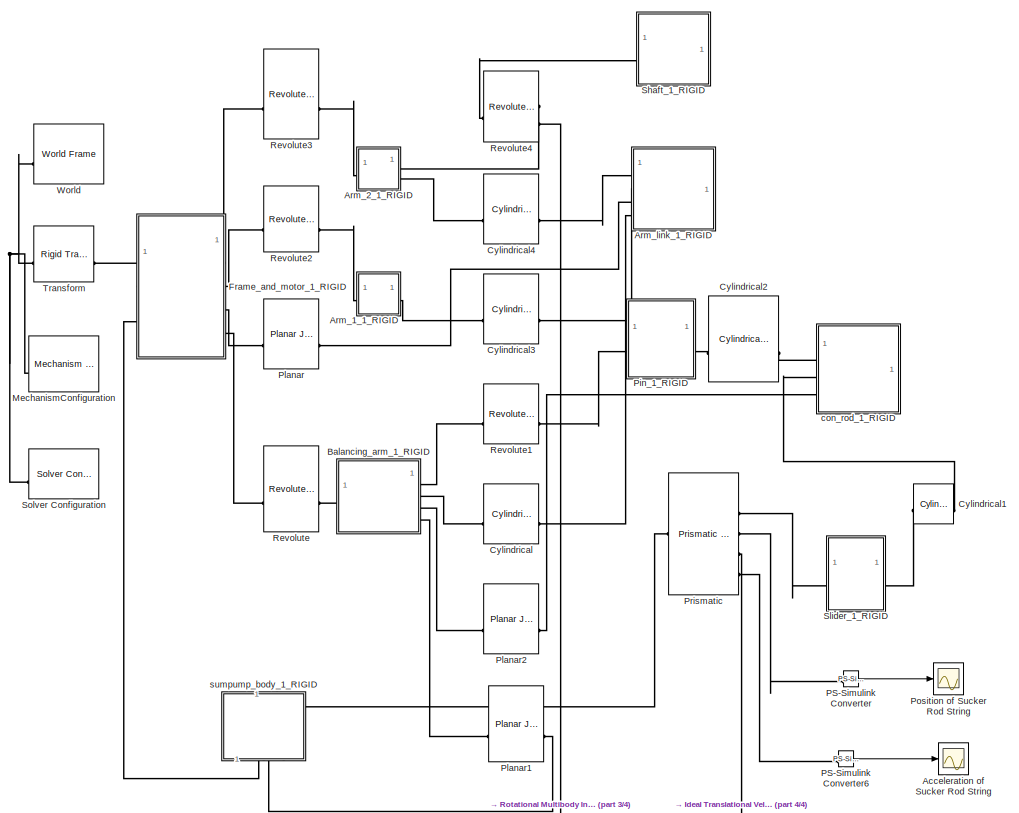
[diagram: root canvas - part 1/4, top center region]
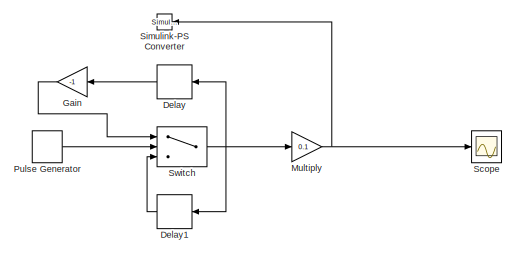
[diagram: root canvas - part 2/4, top right region]
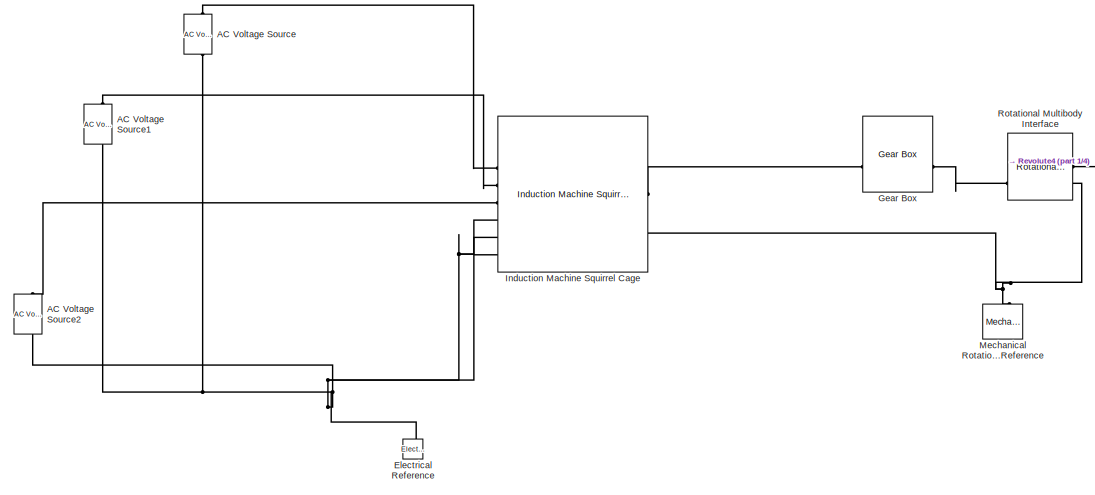
[diagram: root canvas - part 3/4, middle left region]
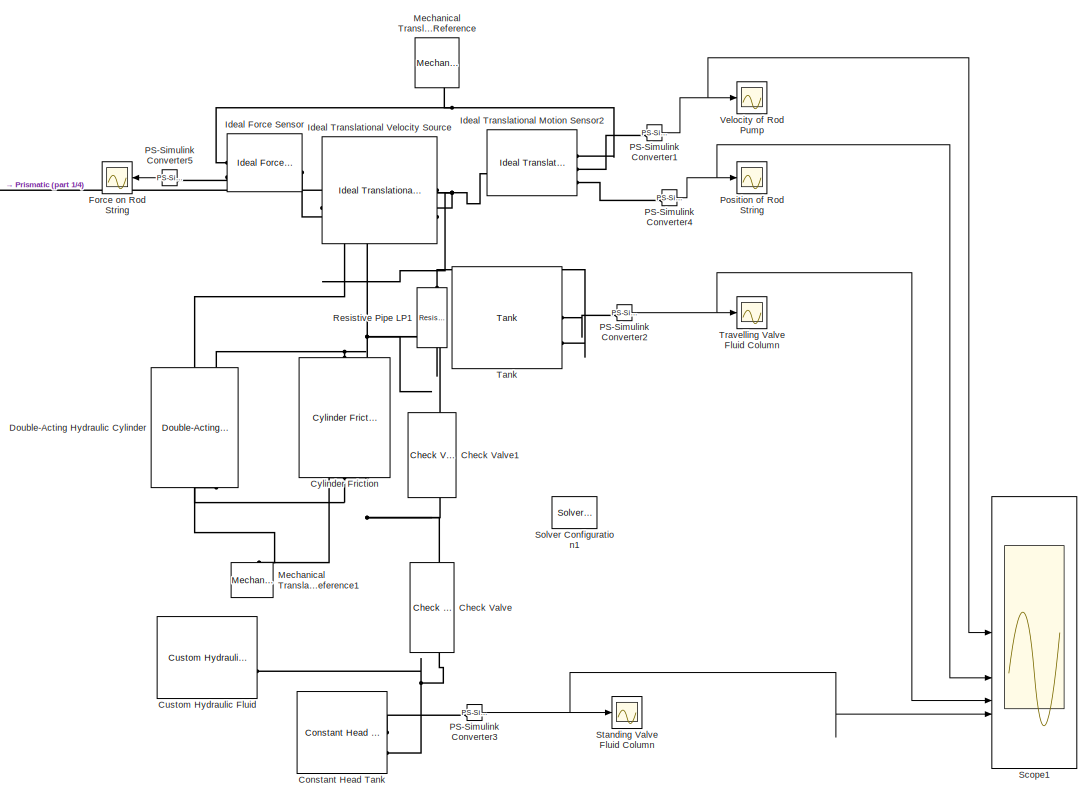
[diagram: root canvas - part 4/4, bottom right region]
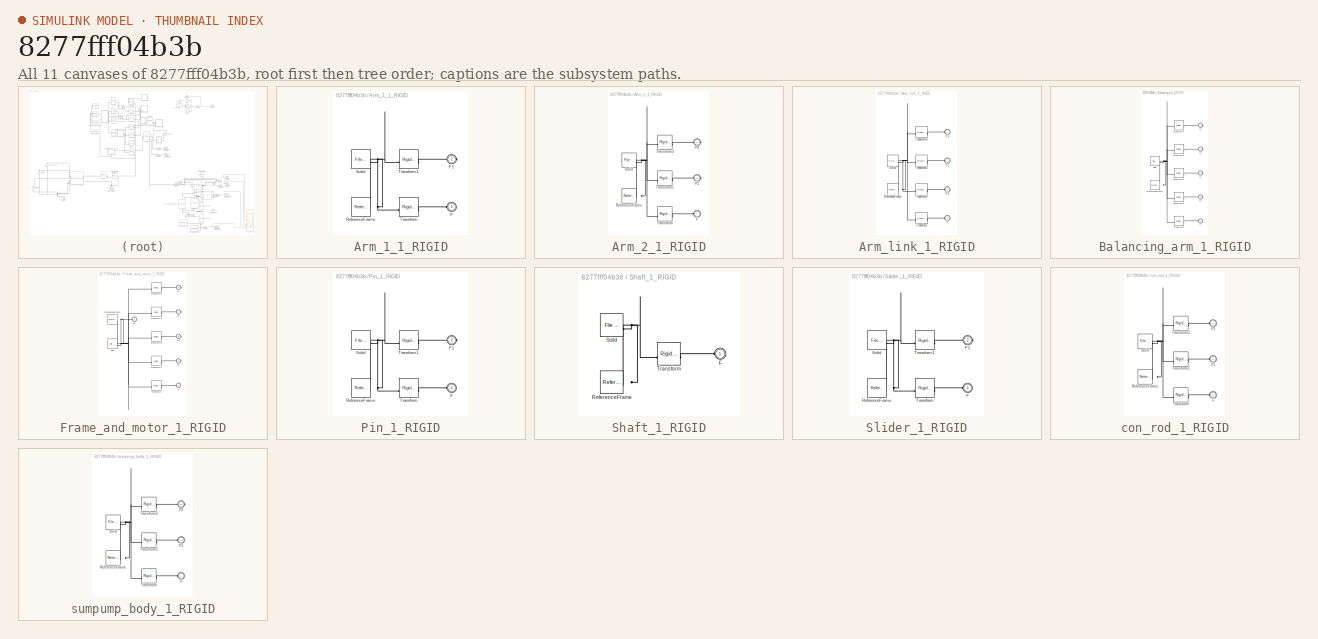
[diagram: thumbnail index - all 11 canvases of the model, root first then tree order]
MODEL slx_8277fff04b3b
KIND model
CONFIG AbsTol = auto
CONFIG EnableMultiTasking = off
CONFIG FixedStep = auto
CONFIG MaxStep = auto
CONFIG MinStep = auto
CONFIG RelTol = 1e-3
CONFIG SampleTimeConstraint = Unconstrained
CONFIG SolverName = VariableStepAuto
CONFIG StartTime = 0.0
CONFIG StopTime = 1.0
WORKSPACE source: external: MATLAB File  (data not in archive)
BLOCK [Reference] AC Voltage Source  REF=fl_lib/Electrical/Electrical Sources/AC Voltage Source
  NameLocation = right
  SourceBlock = fl_lib/Electrical/Electrical Sources/AC Voltage Source
  SourceType = AC Voltage Source
BLOCK [Reference] AC Voltage Source1  REF=fl_lib/Electrical/Electrical Sources/AC Voltage Source
  NameLocation = right
  SourceBlock = fl_lib/Electrical/Electrical Sources/AC Voltage Source
  SourceType = AC Voltage Source
BLOCK [Reference] AC Voltage Source2  REF=fl_lib/Electrical/Electrical Sources/AC Voltage Source
  NameLocation = right
  SourceBlock = fl_lib/Electrical/Electrical Sources/AC Voltage Source
  SourceType = AC Voltage Source
BLOCK [Scope] Acceleration of Sucker Rod String
  Floating = off
  NameLocation = top
  NumInputPorts = 1
  ScopeSpecificationString = Simulink.scopes.TimeScopeBlockCfg('CurrentConfiguration', extmgr.ConfigurationSet(extmgr.Configuration('Core','General UI',true),extmgr.Configuration('Core','Source UI',true),extmgr.Configuration('Sources','WiredSimulink',true,'DataLoggingVariableName','ScopeData1'),extmgr.Configuration('Visuals','Time Domain',true,'SerializedDisplays',{struct('MinYLimReal','-6800412.01742','MaxYLimReal','8439459....<+1920ch>
BLOCK [SubSystem] Arm_1_1_RIGID
BLOCK [PMIOPort] Arm_1_1_RIGID/F
  Side = Left
BLOCK [PMIOPort] Arm_1_1_RIGID/F1
  Port = 2
  Side = Right
BLOCK [Reference] Arm_1_1_RIGID/ReferenceFrame  REF=sm_lib/Frames and
Transforms/Reference
Frame
  SourceBlock = sm_lib/Frames and\nTransforms/Reference\nFrame
  SourceType = Reference\nFrame
BLOCK [Reference] Arm_1_1_RIGID/Solid  REF=sm_lib/Body Elements/File Solid
  SourceBlock = sm_lib/Body Elements/File Solid
  SourceType = File Solid
BLOCK [Reference] Arm_1_1_RIGID/Transform  REF=sm_lib/Frames and
Transforms/Rigid
Transform
  SourceBlock = sm_lib/Frames and\nTransforms/Rigid\nTransform
  SourceType = Rigid\nTransform
BLOCK [Reference] Arm_1_1_RIGID/Transform1  REF=sm_lib/Frames and
Transforms/Rigid
Transform
  SourceBlock = sm_lib/Frames and\nTransforms/Rigid\nTransform
  SourceType = Rigid\nTransform
BLOCK [SubSystem] Arm_2_1_RIGID
BLOCK [PMIOPort] Arm_2_1_RIGID/F
  Side = Left
BLOCK [PMIOPort] Arm_2_1_RIGID/F1
  Port = 3
  Side = Right
BLOCK [PMIOPort] Arm_2_1_RIGID/F2
  Port = 2
  Side = Right
BLOCK [Reference] Arm_2_1_RIGID/ReferenceFrame  REF=sm_lib/Frames and
Transforms/Reference
Frame
  SourceBlock = sm_lib/Frames and\nTransforms/Reference\nFrame
  SourceType = Reference\nFrame
BLOCK [Reference] Arm_2_1_RIGID/Solid  REF=sm_lib/Body Elements/File Solid
  SourceBlock = sm_lib/Body Elements/File Solid
  SourceType = File Solid
BLOCK [Reference] Arm_2_1_RIGID/Transform  REF=sm_lib/Frames and
Transforms/Rigid
Transform
  SourceBlock = sm_lib/Frames and\nTransforms/Rigid\nTransform
  SourceType = Rigid\nTransform
BLOCK [Reference] Arm_2_1_RIGID/Transform1  REF=sm_lib/Frames and
Transforms/Rigid
Transform
  SourceBlock = sm_lib/Frames and\nTransforms/Rigid\nTransform
  SourceType = Rigid\nTransform
BLOCK [Reference] Arm_2_1_RIGID/Transform2  REF=sm_lib/Frames and
Transforms/Rigid
Transform
  SourceBlock = sm_lib/Frames and\nTransforms/Rigid\nTransform
  SourceType = Rigid\nTransform
BLOCK [SubSystem] Arm_link_1_RIGID
BLOCK [PMIOPort] Arm_link_1_RIGID/F
  Port = 3
  Side = Left
BLOCK [PMIOPort] Arm_link_1_RIGID/F1
  Port = 4
  Side = Left
BLOCK [PMIOPort] Arm_link_1_RIGID/F2
  Port = 2
  Side = Left
BLOCK [PMIOPort] Arm_link_1_RIGID/F3
  Side = Left
BLOCK [Reference] Arm_link_1_RIGID/ReferenceFrame  REF=sm_lib/Frames and
Transforms/Reference
Frame
  SourceBlock = sm_lib/Frames and\nTransforms/Reference\nFrame
  SourceType = Reference\nFrame
BLOCK [Reference] Arm_link_1_RIGID/Solid  REF=sm_lib/Body Elements/File Solid
  SourceBlock = sm_lib/Body Elements/File Solid
  SourceType = File Solid
BLOCK [Reference] Arm_link_1_RIGID/Transform  REF=sm_lib/Frames and
Transforms/Rigid
Transform
  SourceBlock = sm_lib/Frames and\nTransforms/Rigid\nTransform
  SourceType = Rigid\nTransform
BLOCK [Reference] Arm_link_1_RIGID/Transform1  REF=sm_lib/Frames and
Transforms/Rigid
Transform
  SourceBlock = sm_lib/Frames and\nTransforms/Rigid\nTransform
  SourceType = Rigid\nTransform
BLOCK [Reference] Arm_link_1_RIGID/Transform2  REF=sm_lib/Frames and
Transforms/Rigid
Transform
  SourceBlock = sm_lib/Frames and\nTransforms/Rigid\nTransform
  SourceType = Rigid\nTransform
BLOCK [Reference] Arm_link_1_RIGID/Transform3  REF=sm_lib/Frames and
Transforms/Rigid
Transform
  SourceBlock = sm_lib/Frames and\nTransforms/Rigid\nTransform
  SourceType = Rigid\nTransform
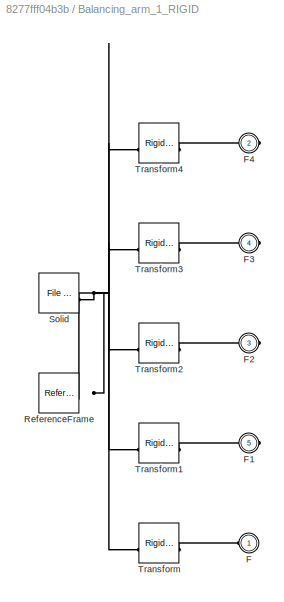
BLOCK [SubSystem] Balancing_arm_1_RIGID
BLOCK [PMIOPort] Balancing_arm_1_RIGID/F
  Side = Left
BLOCK [PMIOPort] Balancing_arm_1_RIGID/F1
  Port = 5
  Side = Right
BLOCK [PMIOPort] Balancing_arm_1_RIGID/F2
  Port = 3
  Side = Right
BLOCK [PMIOPort] Balancing_arm_1_RIGID/F3
  Port = 4
  Side = Right
BLOCK [PMIOPort] Balancing_arm_1_RIGID/F4
  Port = 2
  Side = Right
BLOCK [Reference] Balancing_arm_1_RIGID/ReferenceFrame  REF=sm_lib/Frames and
Transforms/Reference
Frame
  SourceBlock = sm_lib/Frames and\nTransforms/Reference\nFrame
  SourceType = Reference\nFrame
BLOCK [Reference] Balancing_arm_1_RIGID/Solid  REF=sm_lib/Body Elements/File Solid
  SourceBlock = sm_lib/Body Elements/File Solid
  SourceType = File Solid
BLOCK [Reference] Balancing_arm_1_RIGID/Transform  REF=sm_lib/Frames and
Transforms/Rigid
Transform
  SourceBlock = sm_lib/Frames and\nTransforms/Rigid\nTransform
  SourceType = Rigid\nTransform
BLOCK [Reference] Balancing_arm_1_RIGID/Transform1  REF=sm_lib/Frames and
Transforms/Rigid
Transform
  SourceBlock = sm_lib/Frames and\nTransforms/Rigid\nTransform
  SourceType = Rigid\nTransform
BLOCK [Reference] Balancing_arm_1_RIGID/Transform2  REF=sm_lib/Frames and
Transforms/Rigid
Transform
  SourceBlock = sm_lib/Frames and\nTransforms/Rigid\nTransform
  SourceType = Rigid\nTransform
BLOCK [Reference] Balancing_arm_1_RIGID/Transform3  REF=sm_lib/Frames and
Transforms/Rigid
Transform
  SourceBlock = sm_lib/Frames and\nTransforms/Rigid\nTransform
  SourceType = Rigid\nTransform
BLOCK [Reference] Balancing_arm_1_RIGID/Transform4  REF=sm_lib/Frames and
Transforms/Rigid
Transform
  SourceBlock = sm_lib/Frames and\nTransforms/Rigid\nTransform
  SourceType = Rigid\nTransform
BLOCK [Reference] Check Valve  REF=sh_lib/Valves/Directional Valves/Check Valve
  NameLocation = right
  SourceBlock = sh_lib/Valves/Directional Valves/Check Valve
  SourceType = Check Valve
BLOCK [Reference] Check Valve1  REF=sh_lib/Valves/Directional Valves/Check Valve
  NameLocation = right
  SourceBlock = sh_lib/Valves/Directional Valves/Check Valve
  SourceType = Check Valve
BLOCK [Reference] Constant Head Tank  REF=sh_lib/Low-Pressure Blocks/Constant Head Tank
  SourceBlock = sh_lib/Low-Pressure Blocks/Constant Head Tank
  SourceType = Constant Head Tank
BLOCK [Reference] Custom Hydraulic Fluid  REF=fl_lib/Hydraulic/Hydraulic Utilities/Custom Hydraulic
Fluid
  SourceBlock = fl_lib/Hydraulic/Hydraulic Utilities/Custom Hydraulic\nFluid
  SourceType = Custom Hydraulic\nFluid
BLOCK [Reference] Cylinder Friction  REF=sh_lib/Hydraulic Cylinders/Cylinder Friction
  NameLocation = left
  SourceBlock = sh_lib/Hydraulic Cylinders/Cylinder Friction
  SourceType = Cylinder Friction
BLOCK [Reference] Cylindrical  REF=sm_lib/Joints/Cylindrical
Joint
  SourceBlock = sm_lib/Joints/Cylindrical\nJoint
  SourceType = Cylindrical\nJoint
BLOCK [Reference] Cylindrical1  REF=sm_lib/Joints/Cylindrical
Joint
  SourceBlock = sm_lib/Joints/Cylindrical\nJoint
  SourceType = Cylindrical\nJoint
BLOCK [Reference] Cylindrical2  REF=sm_lib/Joints/Cylindrical
Joint
  SourceBlock = sm_lib/Joints/Cylindrical\nJoint
  SourceType = Cylindrical\nJoint
BLOCK [Reference] Cylindrical3  REF=sm_lib/Joints/Cylindrical
Joint
  SourceBlock = sm_lib/Joints/Cylindrical\nJoint
  SourceType = Cylindrical\nJoint
BLOCK [Reference] Cylindrical4  REF=sm_lib/Joints/Cylindrical
Joint
  SourceBlock = sm_lib/Joints/Cylindrical\nJoint
  SourceType = Cylindrical\nJoint
BLOCK [Delay] Delay
  DelayLength = 1
  InputPortMap = u0
BLOCK [Delay] Delay1
  DelayLength = 1
  InputPortMap = u0
BLOCK [Reference] Double-Acting Hydraulic Cylinder  REF=sh_lib/Hydraulic Cylinders/Double-Acting
Hydraulic Cylinder
  NameLocation = left
  SourceBlock = sh_lib/Hydraulic Cylinders/Double-Acting\nHydraulic Cylinder
  SourceType = Double-Acting\nHydraulic Cylinder
BLOCK [Reference] Electrical Reference  REF=fl_lib/Electrical/Electrical Elements/Electrical Reference
  NameLocation = right
  SourceBlock = fl_lib/Electrical/Electrical Elements/Electrical Reference
  SourceType = Electrical Reference
BLOCK [Scope] Force on Rod String
  Floating = off
  NameLocation = top
  NumInputPorts = 1
  ScopeSpecificationString = Simulink.scopes.TimeScopeBlockCfg('CurrentConfiguration', extmgr.ConfigurationSet(extmgr.Configuration('Core','General UI',true),extmgr.Configuration('Core','Source UI',true),extmgr.Configuration('Sources','WiredSimulink',true,'DataLoggingVariableName','ScopeData5'),extmgr.Configuration('Visuals','Time Domain',true,'SerializedDisplays',{struct('MinYLimReal','-6138792.93317','MaxYLimReal','2112015....<+2216ch>
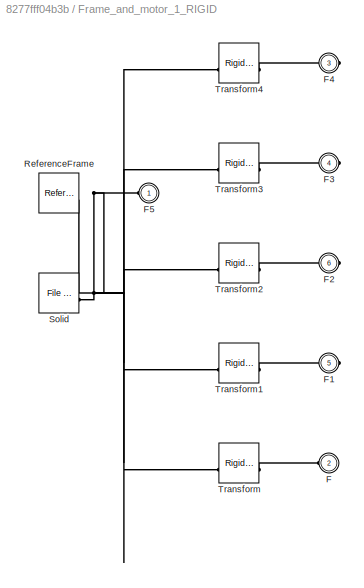
BLOCK [SubSystem] Frame_and_motor_1_RIGID
BLOCK [PMIOPort] Frame_and_motor_1_RIGID/F
  Port = 2
  Side = Left
BLOCK [PMIOPort] Frame_and_motor_1_RIGID/F1
  Port = 5
  Side = Right
BLOCK [PMIOPort] Frame_and_motor_1_RIGID/F2
  Port = 6
  Side = Right
BLOCK [PMIOPort] Frame_and_motor_1_RIGID/F3
  Port = 4
  Side = Right
BLOCK [PMIOPort] Frame_and_motor_1_RIGID/F4
  Port = 3
  Side = Right
BLOCK [PMIOPort] Frame_and_motor_1_RIGID/F5
  Side = Left
BLOCK [Reference] Frame_and_motor_1_RIGID/ReferenceFrame  REF=sm_lib/Frames and
Transforms/Reference
Frame
  SourceBlock = sm_lib/Frames and\nTransforms/Reference\nFrame
  SourceType = Reference\nFrame
BLOCK [Reference] Frame_and_motor_1_RIGID/Solid  REF=sm_lib/Body Elements/File Solid
  SourceBlock = sm_lib/Body Elements/File Solid
  SourceType = File Solid
BLOCK [Reference] Frame_and_motor_1_RIGID/Transform  REF=sm_lib/Frames and
Transforms/Rigid
Transform
  SourceBlock = sm_lib/Frames and\nTransforms/Rigid\nTransform
  SourceType = Rigid\nTransform
BLOCK [Reference] Frame_and_motor_1_RIGID/Transform1  REF=sm_lib/Frames and
Transforms/Rigid
Transform
  SourceBlock = sm_lib/Frames and\nTransforms/Rigid\nTransform
  SourceType = Rigid\nTransform
BLOCK [Reference] Frame_and_motor_1_RIGID/Transform2  REF=sm_lib/Frames and
Transforms/Rigid
Transform
  SourceBlock = sm_lib/Frames and\nTransforms/Rigid\nTransform
  SourceType = Rigid\nTransform
BLOCK [Reference] Frame_and_motor_1_RIGID/Transform3  REF=sm_lib/Frames and
Transforms/Rigid
Transform
  SourceBlock = sm_lib/Frames and\nTransforms/Rigid\nTransform
  SourceType = Rigid\nTransform
BLOCK [Reference] Frame_and_motor_1_RIGID/Transform4  REF=sm_lib/Frames and
Transforms/Rigid
Transform
  SourceBlock = sm_lib/Frames and\nTransforms/Rigid\nTransform
  SourceType = Rigid\nTransform
BLOCK [Gain] Gain
  Gain = -1
BLOCK [Reference] Gear Box  REF=fl_lib/Mechanical/Mechanisms/Gear Box
  SourceBlock = fl_lib/Mechanical/Mechanisms/Gear Box
  SourceType = Gear Box
BLOCK [Reference] Ideal Force Sensor  REF=fl_lib/Mechanical/Mechanical Sensors/Ideal Force Sensor
  NameLocation = top
  SourceBlock = fl_lib/Mechanical/Mechanical Sensors/Ideal Force Sensor
  SourceType = Ideal Force Sensor
BLOCK [Reference] Ideal Translational Motion Sensor2  REF=fl_lib/Mechanical/Mechanical Sensors/Ideal Translational
Motion Sensor
  SourceBlock = fl_lib/Mechanical/Mechanical Sensors/Ideal Translational\nMotion Sensor
  SourceType = Ideal Translational\nMotion Sensor
BLOCK [Reference] Ideal Translational Velocity Source  REF=fl_lib/Mechanical/Mechanical Sources/Ideal Translational
Velocity Source
  SourceBlock = fl_lib/Mechanical/Mechanical Sources/Ideal Translational\nVelocity Source
  SourceType = Ideal Translational\nVelocity Source
BLOCK [Reference] Induction Machine Squirrel Cage  REF=ee_lib/Electromechanical/Asynchronous/Induction Machine
Squirrel Cage
  SourceBlock = ee_lib/Electromechanical/Asynchronous/Induction Machine\nSquirrel Cage
  SourceType = Induction Machine\nSquirrel Cage
BLOCK [Reference] Mechanical Rotational Reference  REF=fl_lib/Mechanical/Rotational Elements/Mechanical
Rotational Reference
  NameLocation = right
  SourceBlock = fl_lib/Mechanical/Rotational Elements/Mechanical\nRotational Reference
  SourceType = Mechanical\nRotational Reference
BLOCK [Reference] Mechanical Translational Reference  REF=fl_lib/Mechanical/Translational
Elements/Mechanical
Translational
Reference
  NameLocation = left
  SourceBlock = fl_lib/Mechanical/Translational\nElements/Mechanical\nTranslational\nReference
  SourceType = Mechanical\nTranslational\nReference
BLOCK [Reference] Mechanical Translational Reference1  REF=fl_lib/Mechanical/Translational
Elements/Mechanical
Translational
Reference
  NameLocation = right
  SourceBlock = fl_lib/Mechanical/Translational\nElements/Mechanical\nTranslational\nReference
  SourceType = Mechanical\nTranslational\nReference
BLOCK [Reference] MechanismConfiguration  REF=sm_lib/Utilities/Mechanism
Configuration
  SourceBlock = sm_lib/Utilities/Mechanism\nConfiguration
  SourceType = Mechanism\nConfiguration
BLOCK [Gain] Multiply
  Gain = 0.1
BLOCK [Reference] PS-Simulink Converter  REF=nesl_utility/PS-Simulink
Converter
  SourceBlock = nesl_utility/PS-Simulink\nConverter
  SourceType = PS-Simulink\nConverter
BLOCK [Reference] PS-Simulink Converter1  REF=nesl_utility/PS-Simulink
Converter
  SourceBlock = nesl_utility/PS-Simulink\nConverter
  SourceType = PS-Simulink\nConverter
BLOCK [Reference] PS-Simulink Converter2  REF=nesl_utility/PS-Simulink
Converter
  SourceBlock = nesl_utility/PS-Simulink\nConverter
  SourceType = PS-Simulink\nConverter
BLOCK [Reference] PS-Simulink Converter3  REF=nesl_utility/PS-Simulink
Converter
  SourceBlock = nesl_utility/PS-Simulink\nConverter
  SourceType = PS-Simulink\nConverter
BLOCK [Reference] PS-Simulink Converter4  REF=nesl_utility/PS-Simulink
Converter
  SourceBlock = nesl_utility/PS-Simulink\nConverter
  SourceType = PS-Simulink\nConverter
BLOCK [Reference] PS-Simulink Converter5  REF=nesl_utility/PS-Simulink
Converter
  SourceBlock = nesl_utility/PS-Simulink\nConverter
  SourceType = PS-Simulink\nConverter
BLOCK [Reference] PS-Simulink Converter6  REF=nesl_utility/PS-Simulink
Converter
  SourceBlock = nesl_utility/PS-Simulink\nConverter
  SourceType = PS-Simulink\nConverter
BLOCK [SubSystem] Pin_1_RIGID
BLOCK [PMIOPort] Pin_1_RIGID/F
  Side = Left
BLOCK [PMIOPort] Pin_1_RIGID/F1
  Port = 2
  Side = Right
BLOCK [Reference] Pin_1_RIGID/ReferenceFrame  REF=sm_lib/Frames and
Transforms/Reference
Frame
  SourceBlock = sm_lib/Frames and\nTransforms/Reference\nFrame
  SourceType = Reference\nFrame
BLOCK [Reference] Pin_1_RIGID/Solid  REF=sm_lib/Body Elements/File Solid
  SourceBlock = sm_lib/Body Elements/File Solid
  SourceType = File Solid
BLOCK [Reference] Pin_1_RIGID/Transform  REF=sm_lib/Frames and
Transforms/Rigid
Transform
  SourceBlock = sm_lib/Frames and\nTransforms/Rigid\nTransform
  SourceType = Rigid\nTransform
BLOCK [Reference] Pin_1_RIGID/Transform1  REF=sm_lib/Frames and
Transforms/Rigid
Transform
  SourceBlock = sm_lib/Frames and\nTransforms/Rigid\nTransform
  SourceType = Rigid\nTransform
BLOCK [Reference] Planar  REF=sm_lib/Joints/Planar Joint
  SourceBlock = sm_lib/Joints/Planar Joint
  SourceType = Planar Joint
BLOCK [Reference] Planar1  REF=sm_lib/Joints/Planar Joint
  SourceBlock = sm_lib/Joints/Planar Joint
  SourceType = Planar Joint
BLOCK [Reference] Planar2  REF=sm_lib/Joints/Planar Joint
  SourceBlock = sm_lib/Joints/Planar Joint
  SourceType = Planar Joint
BLOCK [Scope] Position of Rod String
  Floating = off
  NumInputPorts = 1
  ScopeSpecificationString = Simulink.scopes.TimeScopeBlockCfg('CurrentConfiguration', extmgr.ConfigurationSet(extmgr.Configuration('Core','General UI',true),extmgr.Configuration('Core','Source UI',true),extmgr.Configuration('Sources','WiredSimulink',true,'DataLoggingVariableName','ScopeData4'),extmgr.Configuration('Visuals','Time Domain',true),extmgr.Configuration('Tools','Plot Navigation',true),extmgr.Configuration('Tools',...<+40ch>
BLOCK [Scope] Position of Sucker Rod String
  Floating = off
  NameLocation = top
  NumInputPorts = 1
  ScopeSpecificationString = Simulink.scopes.TimeScopeBlockCfg('CurrentConfiguration', extmgr.ConfigurationSet(extmgr.Configuration('Core','General UI',true),extmgr.Configuration('Core','Source UI',true),extmgr.Configuration('Sources','WiredSimulink',true,'DataLoggingVariableName','ScopeData1'),extmgr.Configuration('Visuals','Time Domain',true,'SerializedDisplays',{struct('MinYLimReal','-0.51332','MaxYLimReal','1.92476','YLab...<+1568ch>
BLOCK [Reference] Prismatic  REF=sm_lib/Joints/Prismatic
Joint
  SourceBlock = sm_lib/Joints/Prismatic\nJoint
  SourceType = Prismatic\nJoint
BLOCK [DiscretePulseGenerator] Pulse Generator
  Amplitude = 10
  Period = 10
  PulseType = Time based
  PulseWidth = 5
BLOCK [Reference] Resistive Pipe LP1  REF=sh_lib/Low-Pressure Blocks/Resistive Pipe LP
  NameLocation = left
  SourceBlock = sh_lib/Low-Pressure Blocks/Resistive Pipe LP
  SourceType = Resistive Pipe LP
BLOCK [Reference] Revolute  REF=sm_lib/Joints/Revolute Joint
  SourceBlock = sm_lib/Joints/Revolute Joint
  SourceType = Revolute Joint
BLOCK [Reference] Revolute1  REF=sm_lib/Joints/Revolute Joint
  SourceBlock = sm_lib/Joints/Revolute Joint
  SourceType = Revolute Joint
BLOCK [Reference] Revolute2  REF=sm_lib/Joints/Revolute Joint
  SourceBlock = sm_lib/Joints/Revolute Joint
  SourceType = Revolute Joint
BLOCK [Reference] Revolute3  REF=sm_lib/Joints/Revolute Joint
  SourceBlock = sm_lib/Joints/Revolute Joint
  SourceType = Revolute Joint
BLOCK [Reference] Revolute4  REF=sm_lib/Joints/Revolute Joint
  SourceBlock = sm_lib/Joints/Revolute Joint
  SourceType = Revolute Joint
BLOCK [Reference] Rotational Multibody Interface  REF=fl_lib/Mechanical/Multibody Interfaces/Rotational Multibody
Interface
  SourceBlock = fl_lib/Mechanical/Multibody Interfaces/Rotational Multibody\nInterface
  SourceType = Rotational Multibody\nInterface
BLOCK [Scope] Scope
  Floating = off
  NumInputPorts = 1
  ScopeSpecificationString = Simulink.scopes.TimeScopeBlockCfg('CurrentConfiguration', extmgr.ConfigurationSet(extmgr.Configuration('Core','General UI',true),extmgr.Configuration('Core','Source UI',true),extmgr.Configuration('Sources','WiredSimulink',true),extmgr.Configuration('Visuals','Time Domain',true),extmgr.Configuration('Tools','Plot Navigation',true),extmgr.Configuration('Tools','Measurements',true)),'Version','2023a'...<+1ch>
BLOCK [Scope] Scope1
  Floating = off
  NumInputPorts = 4
  ScopeSpecificationString = Simulink.scopes.TimeScopeBlockCfg('CurrentConfiguration', extmgr.ConfigurationSet(extmgr.Configuration('Core','General UI',true),extmgr.Configuration('Core','Source UI',true),extmgr.Configuration('Sources','WiredSimulink',true,'DataLoggingVariableName','ScopeData1'),extmgr.Configuration('Visuals','Time Domain',true,'SerializedDisplays',{struct('MinYLimReal','-1300.52156','MaxYLimReal','1320.63568'...<+3885ch>
BLOCK [SubSystem] Shaft_1_RIGID
BLOCK [PMIOPort] Shaft_1_RIGID/F
  Side = Left
BLOCK [Reference] Shaft_1_RIGID/ReferenceFrame  REF=sm_lib/Frames and
Transforms/Reference
Frame
  SourceBlock = sm_lib/Frames and\nTransforms/Reference\nFrame
  SourceType = Reference\nFrame
BLOCK [Reference] Shaft_1_RIGID/Solid  REF=sm_lib/Body Elements/File Solid
  SourceBlock = sm_lib/Body Elements/File Solid
  SourceType = File Solid
BLOCK [Reference] Shaft_1_RIGID/Transform  REF=sm_lib/Frames and
Transforms/Rigid
Transform
  SourceBlock = sm_lib/Frames and\nTransforms/Rigid\nTransform
  SourceType = Rigid\nTransform
BLOCK [Reference] Simulink-PS Converter  REF=nesl_utility/Simulink-PS
Converter
  SourceBlock = nesl_utility/Simulink-PS\nConverter
  SourceType = Simulink-PS\nConverter
BLOCK [SubSystem] Slider_1_RIGID
BLOCK [PMIOPort] Slider_1_RIGID/F
  Side = Left
BLOCK [PMIOPort] Slider_1_RIGID/F1
  Port = 2
  Side = Right
BLOCK [Reference] Slider_1_RIGID/ReferenceFrame  REF=sm_lib/Frames and
Transforms/Reference
Frame
  SourceBlock = sm_lib/Frames and\nTransforms/Reference\nFrame
  SourceType = Reference\nFrame
BLOCK [Reference] Slider_1_RIGID/Solid  REF=sm_lib/Body Elements/File Solid
  SourceBlock = sm_lib/Body Elements/File Solid
  SourceType = File Solid
BLOCK [Reference] Slider_1_RIGID/Transform  REF=sm_lib/Frames and
Transforms/Rigid
Transform
  SourceBlock = sm_lib/Frames and\nTransforms/Rigid\nTransform
  SourceType = Rigid\nTransform
BLOCK [Reference] Slider_1_RIGID/Transform1  REF=sm_lib/Frames and
Transforms/Rigid
Transform
  SourceBlock = sm_lib/Frames and\nTransforms/Rigid\nTransform
  SourceType = Rigid\nTransform
BLOCK [Reference] Solver Configuration  REF=nesl_utility/Solver
Configuration
  SourceBlock = nesl_utility/Solver\nConfiguration
  SourceType = Solver\nConfiguration
BLOCK [Reference] Solver Configuration1  REF=nesl_utility/Solver
Configuration
  SourceBlock = nesl_utility/Solver\nConfiguration
  SourceType = Solver\nConfiguration
BLOCK [Scope] Standing Valve Fluid Column 
  Floating = off
  NumInputPorts = 1
  ScopeSpecificationString = Simulink.scopes.TimeScopeBlockCfg('CurrentConfiguration', extmgr.ConfigurationSet(extmgr.Configuration('Core','General UI',true),extmgr.Configuration('Core','Source UI',true),extmgr.Configuration('Sources','WiredSimulink',true,'DataLoggingVariableName','ScopeData3'),extmgr.Configuration('Visuals','Time Domain',true),extmgr.Configuration('Tools','Plot Navigation',true),extmgr.Configuration('Tools',...<+40ch>
BLOCK [Switch] Switch
  Criteria = u2 > Threshold
  InputSameDT = off
  SaturateOnIntegerOverflow = off
BLOCK [Reference] Tank  REF=sh_lib/Low-Pressure Blocks/Tank
  SourceBlock = sh_lib/Low-Pressure Blocks/Tank
  SourceType = Tank
BLOCK [Reference] Transform  REF=sm_lib/Frames and
Transforms/Rigid
Transform
  SourceBlock = sm_lib/Frames and\nTransforms/Rigid\nTransform
  SourceType = Rigid\nTransform
BLOCK [Scope] Travelling Valve Fluid Column 
  Floating = off
  NumInputPorts = 1
  ScopeSpecificationString = Simulink.scopes.TimeScopeBlockCfg('CurrentConfiguration', extmgr.ConfigurationSet(extmgr.Configuration('Core','General UI',true),extmgr.Configuration('Core','Source UI',true),extmgr.Configuration('Sources','WiredSimulink',true,'DataLoggingVariableName','ScopeData2'),extmgr.Configuration('Visuals','Time Domain',true),extmgr.Configuration('Tools','Plot Navigation',true),extmgr.Configuration('Tools',...<+40ch>
BLOCK [Scope] Velocity of Rod Pump
  Floating = off
  NumInputPorts = 1
  ScopeSpecificationString = Simulink.scopes.TimeScopeBlockCfg('CurrentConfiguration', extmgr.ConfigurationSet(extmgr.Configuration('Core','General UI',true),extmgr.Configuration('Core','Source UI',true),extmgr.Configuration('Sources','WiredSimulink',true,'DataLoggingVariableName','ScopeData1'),extmgr.Configuration('Visuals','Time Domain',true,'SerializedDisplays',{struct('MinYLimReal','-2591.46517','MaxYLimReal','2625.42908'...<+1544ch>
BLOCK [Reference] World  REF=sm_lib/Frames and
Transforms/World Frame
  SourceBlock = sm_lib/Frames and\nTransforms/World Frame
  SourceType = World Frame
BLOCK [SubSystem] con_rod_1_RIGID
BLOCK [PMIOPort] con_rod_1_RIGID/F
  Port = 3
  Side = Left
BLOCK [PMIOPort] con_rod_1_RIGID/F1
  Port = 2
  Side = Left
BLOCK [PMIOPort] con_rod_1_RIGID/F2
  Side = Left
BLOCK [Reference] con_rod_1_RIGID/ReferenceFrame  REF=sm_lib/Frames and
Transforms/Reference
Frame
  SourceBlock = sm_lib/Frames and\nTransforms/Reference\nFrame
  SourceType = Reference\nFrame
BLOCK [Reference] con_rod_1_RIGID/Solid  REF=sm_lib/Body Elements/File Solid
  SourceBlock = sm_lib/Body Elements/File Solid
  SourceType = File Solid
BLOCK [Reference] con_rod_1_RIGID/Transform  REF=sm_lib/Frames and
Transforms/Rigid
Transform
  SourceBlock = sm_lib/Frames and\nTransforms/Rigid\nTransform
  SourceType = Rigid\nTransform
BLOCK [Reference] con_rod_1_RIGID/Transform1  REF=sm_lib/Frames and
Transforms/Rigid
Transform
  SourceBlock = sm_lib/Frames and\nTransforms/Rigid\nTransform
  SourceType = Rigid\nTransform
BLOCK [Reference] con_rod_1_RIGID/Transform2  REF=sm_lib/Frames and
Transforms/Rigid
Transform
  SourceBlock = sm_lib/Frames and\nTransforms/Rigid\nTransform
  SourceType = Rigid\nTransform
BLOCK [SubSystem] sumpump_body_1_RIGID
  NameLocation = right
BLOCK [PMIOPort] sumpump_body_1_RIGID/F
  Side = Left
BLOCK [PMIOPort] sumpump_body_1_RIGID/F1
  Port = 2
  Side = Left
BLOCK [PMIOPort] sumpump_body_1_RIGID/F2
  Port = 3
  Side = Right
BLOCK [Reference] sumpump_body_1_RIGID/ReferenceFrame  REF=sm_lib/Frames and
Transforms/Reference
Frame
  SourceBlock = sm_lib/Frames and\nTransforms/Reference\nFrame
  SourceType = Reference\nFrame
BLOCK [Reference] sumpump_body_1_RIGID/Solid  REF=sm_lib/Body Elements/File Solid
  SourceBlock = sm_lib/Body Elements/File Solid
  SourceType = File Solid
BLOCK [Reference] sumpump_body_1_RIGID/Transform  REF=sm_lib/Frames and
Transforms/Rigid
Transform
  SourceBlock = sm_lib/Frames and\nTransforms/Rigid\nTransform
  SourceType = Rigid\nTransform
BLOCK [Reference] sumpump_body_1_RIGID/Transform1  REF=sm_lib/Frames and
Transforms/Rigid
Transform
  SourceBlock = sm_lib/Frames and\nTransforms/Rigid\nTransform
  SourceType = Rigid\nTransform
BLOCK [Reference] sumpump_body_1_RIGID/Transform2  REF=sm_lib/Frames and
Transforms/Rigid
Transform
  SourceBlock = sm_lib/Frames and\nTransforms/Rigid\nTransform
  SourceType = Rigid\nTransform
LINE Delay1:1 -> Switch:3
LINE Delay:1 -> Gain:1
LINE Gain:1 -> Switch:1
NET Multiply:1 -> Scope:1, Simulink-PS Converter:1
NET PS-Simulink Converter1:1 -> Scope1:1, Velocity of Rod Pump:1
NET PS-Simulink Converter2:1 -> Scope1:3, Travelling Valve Fluid Column :1
NET PS-Simulink Converter3:1 -> Scope1:4, Standing Valve Fluid Column :1
NET PS-Simulink Converter4:1 -> Position of Rod String:1, Scope1:2
LINE PS-Simulink Converter5:1 -> Force on Rod String:1
LINE PS-Simulink Converter6:1 -> Acceleration of Sucker Rod String:1
LINE PS-Simulink Converter:1 -> Position of Sucker Rod String:1
LINE Pulse Generator:1 -> Switch:2
NET Switch:1 -> Delay1:1, Delay:1, Multiply:1
PLINE AC Voltage Source1:LConn1 -- Induction Machine Squirrel Cage:RConn3
PNET net1: AC Voltage Source1:RConn1 -- AC Voltage Source2:RConn1 -- AC Voltage Source:RConn1 -- Electrical Reference:LConn1 -- Induction Machine Squirrel Cage:RConn5 -- Induction Machine Squirrel Cage:RConn6 -- Induction Machine Squirrel Cage:RConn7
PLINE AC Voltage Source2:LConn1 -- Induction Machine Squirrel Cage:RConn4
PLINE AC Voltage Source:LConn1 -- Induction Machine Squirrel Cage:RConn2
PLINE Arm_1_1_RIGID/F1:RConn1 -- Arm_1_1_RIGID/Transform1:RConn1
PLINE Arm_1_1_RIGID/F:RConn1 -- Arm_1_1_RIGID/Transform:RConn1
PNET net2: Arm_1_1_RIGID/ReferenceFrame:RConn1 -- Arm_1_1_RIGID/Solid:RConn1 -- Arm_1_1_RIGID/Transform1:LConn1 -- Arm_1_1_RIGID/Transform:LConn1
PLINE Arm_1_1_RIGID:LConn1 -- Revolute2:RConn1
PLINE Arm_1_1_RIGID:RConn1 -- Cylindrical3:LConn1
PLINE Arm_2_1_RIGID/F1:RConn1 -- Arm_2_1_RIGID/Transform1:RConn1
PLINE Arm_2_1_RIGID/F2:RConn1 -- Arm_2_1_RIGID/Transform2:RConn1
PLINE Arm_2_1_RIGID/F:RConn1 -- Arm_2_1_RIGID/Transform:RConn1
PNET net3: Arm_2_1_RIGID/ReferenceFrame:RConn1 -- Arm_2_1_RIGID/Solid:RConn1 -- Arm_2_1_RIGID/Transform1:LConn1 -- Arm_2_1_RIGID/Transform2:LConn1 -- Arm_2_1_RIGID/Transform:LConn1
PLINE Arm_2_1_RIGID:LConn1 -- Revolute3:RConn1
PLINE Arm_2_1_RIGID:RConn1 -- Revolute4:LConn1
PLINE Arm_2_1_RIGID:RConn2 -- Cylindrical4:LConn1
PLINE Arm_link_1_RIGID/F1:RConn1 -- Arm_link_1_RIGID/Transform1:RConn1
PLINE Arm_link_1_RIGID/F2:RConn1 -- Arm_link_1_RIGID/Transform2:RConn1
PLINE Arm_link_1_RIGID/F3:RConn1 -- Arm_link_1_RIGID/Transform3:RConn1
PLINE Arm_link_1_RIGID/F:RConn1 -- Arm_link_1_RIGID/Transform:RConn1
PNET net4: Arm_link_1_RIGID/ReferenceFrame:RConn1 -- Arm_link_1_RIGID/Solid:RConn1 -- Arm_link_1_RIGID/Transform1:LConn1 -- Arm_link_1_RIGID/Transform2:LConn1 -- Arm_link_1_RIGID/Transform3:LConn1 -- Arm_link_1_RIGID/Transform:LConn1
PLINE Arm_link_1_RIGID:LConn1 -- Cylindrical4:RConn1
PLINE Arm_link_1_RIGID:LConn2 -- Cylindrical3:RConn1
PLINE Arm_link_1_RIGID:LConn3 -- Planar:RConn1
PLINE Arm_link_1_RIGID:LConn4 -- Cylindrical:RConn1
PLINE Balancing_arm_1_RIGID/F1:RConn1 -- Balancing_arm_1_RIGID/Transform1:RConn1
PLINE Balancing_arm_1_RIGID/F2:RConn1 -- Balancing_arm_1_RIGID/Transform2:RConn1
PLINE Balancing_arm_1_RIGID/F3:RConn1 -- Balancing_arm_1_RIGID/Transform3:RConn1
PLINE Balancing_arm_1_RIGID/F4:RConn1 -- Balancing_arm_1_RIGID/Transform4:RConn1
PLINE Balancing_arm_1_RIGID/F:RConn1 -- Balancing_arm_1_RIGID/Transform:RConn1
PNET net5: Balancing_arm_1_RIGID/ReferenceFrame:RConn1 -- Balancing_arm_1_RIGID/Solid:RConn1 -- Balancing_arm_1_RIGID/Transform1:LConn1 -- Balancing_arm_1_RIGID/Transform2:LConn1 -- Balancing_arm_1_RIGID/Transform3:LConn1 -- Balancing_arm_1_RIGID/Transform4:LConn1 -- Balancing_arm_1_RIGID/Transform:LConn1
PLINE Balancing_arm_1_RIGID:LConn1 -- Revolute:RConn1
PLINE Balancing_arm_1_RIGID:RConn1 -- Revolute1:LConn1
PLINE Balancing_arm_1_RIGID:RConn2 -- Cylindrical:LConn1
PLINE Balancing_arm_1_RIGID:RConn3 -- Planar2:LConn1
PLINE Balancing_arm_1_RIGID:RConn4 -- Planar1:LConn1
PNET net6: Check Valve1:LConn1 -- Check Valve:RConn1 -- Cylinder Friction:LConn1 -- Double-Acting Hydraulic Cylinder:LConn2
PNET net7: Check Valve1:RConn1 -- Cylinder Friction:RConn1 -- Double-Acting Hydraulic Cylinder:RConn2 -- Resistive Pipe LP1:RConn1
PNET net8: Check Valve:LConn1 -- Constant Head Tank:RConn2 -- Custom Hydraulic Fluid:RConn1
PLINE Constant Head Tank:RConn1 -- PS-Simulink Converter3:LConn1
PNET net9: Cylinder Friction:LConn2 -- Double-Acting Hydraulic Cylinder:LConn1 -- Mechanical Translational Reference1:LConn1
PNET net10: Cylinder Friction:RConn2 -- Double-Acting Hydraulic Cylinder:RConn1 -- Ideal Translational Motion Sensor2:LConn1 -- Ideal Translational Velocity Source:LConn1
PLINE Cylindrical1:LConn1 -- Slider_1_RIGID:RConn1
PLINE Cylindrical1:RConn1 -- con_rod_1_RIGID:LConn2
PLINE Cylindrical2:LConn1 -- Pin_1_RIGID:RConn1
PLINE Cylindrical2:RConn1 -- con_rod_1_RIGID:LConn1
PLINE Frame_and_motor_1_RIGID/F1:RConn1 -- Frame_and_motor_1_RIGID/Transform1:RConn1
PLINE Frame_and_motor_1_RIGID/F2:RConn1 -- Frame_and_motor_1_RIGID/Transform2:RConn1
PLINE Frame_and_motor_1_RIGID/F3:RConn1 -- Frame_and_motor_1_RIGID/Transform3:RConn1
PLINE Frame_and_motor_1_RIGID/F4:RConn1 -- Frame_and_motor_1_RIGID/Transform4:RConn1
PNET net11: Frame_and_motor_1_RIGID/F5:RConn1 -- Frame_and_motor_1_RIGID/ReferenceFrame:RConn1 -- Frame_and_motor_1_RIGID/Solid:RConn1 -- Frame_and_motor_1_RIGID/Transform1:LConn1 -- Frame_and_motor_1_RIGID/Transform2:LConn1 -- Frame_and_motor_1_RIGID/Transform3:LConn1 -- Frame_and_motor_1_RIGID/Transform4:LConn1 -- Frame_and_motor_1_RIGID/Transform:LConn1
PLINE Frame_and_motor_1_RIGID/F:RConn1 -- Frame_and_motor_1_RIGID/Transform:RConn1
PLINE Frame_and_motor_1_RIGID:LConn1 -- Transform:RConn1
PLINE Frame_and_motor_1_RIGID:LConn2 -- sumpump_body_1_RIGID:LConn1
PLINE Frame_and_motor_1_RIGID:RConn1 -- Revolute3:LConn1
PLINE Frame_and_motor_1_RIGID:RConn2 -- Revolute2:LConn1
PLINE Frame_and_motor_1_RIGID:RConn3 -- Planar:LConn1
PLINE Frame_and_motor_1_RIGID:RConn4 -- Revolute:LConn1
PLINE Gear Box:LConn1 -- Induction Machine Squirrel Cage:LConn1
PLINE Gear Box:RConn1 -- Rotational Multibody Interface:RConn2
PLINE Ideal Force Sensor:LConn1 -- Ideal Translational Velocity Source:RConn2
PNET net12: Ideal Force Sensor:RConn1 -- Ideal Translational Motion Sensor2:RConn1 -- Mechanical Translational Reference:LConn1
PLINE Ideal Force Sensor:RConn2 -- PS-Simulink Converter5:LConn1
PLINE Ideal Translational Motion Sensor2:RConn2 -- PS-Simulink Converter1:LConn1
PLINE Ideal Translational Motion Sensor2:RConn3 -- PS-Simulink Converter4:LConn1
PLINE Ideal Translational Velocity Source:RConn1 -- Prismatic:RConn3
PNET net13: Induction Machine Squirrel Cage:LConn2 -- Mechanical Rotational Reference:LConn1 -- Rotational Multibody Interface:LConn2
PNET net14: MechanismConfiguration:RConn1 -- Solver Configuration:RConn1 -- Transform:LConn1 -- World:RConn1
PLINE PS-Simulink Converter2:LConn1 -- Tank:RConn1
PLINE PS-Simulink Converter6:LConn1 -- Prismatic:RConn4
PLINE PS-Simulink Converter:LConn1 -- Prismatic:RConn2
PLINE Pin_1_RIGID/F1:RConn1 -- Pin_1_RIGID/Transform1:RConn1
PLINE Pin_1_RIGID/F:RConn1 -- Pin_1_RIGID/Transform:RConn1
PNET net15: Pin_1_RIGID/ReferenceFrame:RConn1 -- Pin_1_RIGID/Solid:RConn1 -- Pin_1_RIGID/Transform1:LConn1 -- Pin_1_RIGID/Transform:LConn1
PLINE Pin_1_RIGID:LConn1 -- Revolute1:RConn1
PLINE Planar1:RConn1 -- sumpump_body_1_RIGID:LConn2
PLINE Planar2:RConn1 -- con_rod_1_RIGID:LConn3
PLINE Prismatic:LConn1 -- sumpump_body_1_RIGID:RConn1
PLINE Prismatic:RConn1 -- Slider_1_RIGID:LConn1
PLINE Resistive Pipe LP1:LConn1 -- Tank:RConn2
PLINE Revolute4:LConn2 -- Rotational Multibody Interface:LConn1
PLINE Revolute4:RConn1 -- Shaft_1_RIGID:LConn1
PLINE Shaft_1_RIGID/F:RConn1 -- Shaft_1_RIGID/Transform:RConn1
PNET net16: Shaft_1_RIGID/ReferenceFrame:RConn1 -- Shaft_1_RIGID/Solid:RConn1 -- Shaft_1_RIGID/Transform:LConn1
PLINE Slider_1_RIGID/F1:RConn1 -- Slider_1_RIGID/Transform1:RConn1
PLINE Slider_1_RIGID/F:RConn1 -- Slider_1_RIGID/Transform:RConn1
PNET net17: Slider_1_RIGID/ReferenceFrame:RConn1 -- Slider_1_RIGID/Solid:RConn1 -- Slider_1_RIGID/Transform1:LConn1 -- Slider_1_RIGID/Transform:LConn1
PLINE con_rod_1_RIGID/F1:RConn1 -- con_rod_1_RIGID/Transform1:RConn1
PLINE con_rod_1_RIGID/F2:RConn1 -- con_rod_1_RIGID/Transform2:RConn1
PLINE con_rod_1_RIGID/F:RConn1 -- con_rod_1_RIGID/Transform:RConn1
PNET net18: con_rod_1_RIGID/ReferenceFrame:RConn1 -- con_rod_1_RIGID/Solid:RConn1 -- con_rod_1_RIGID/Transform1:LConn1 -- con_rod_1_RIGID/Transform2:LConn1 -- con_rod_1_RIGID/Transform:LConn1
PLINE sumpump_body_1_RIGID/F1:RConn1 -- sumpump_body_1_RIGID/Transform1:RConn1
PLINE sumpump_body_1_RIGID/F2:RConn1 -- sumpump_body_1_RIGID/Transform2:RConn1
PLINE sumpump_body_1_RIGID/F:RConn1 -- sumpump_body_1_RIGID/Transform:RConn1
PNET net19: sumpump_body_1_RIGID/ReferenceFrame:RConn1 -- sumpump_body_1_RIGID/Solid:RConn1 -- sumpump_body_1_RIGID/Transform1:LConn1 -- sumpump_body_1_RIGID/Transform2:LConn1 -- sumpump_body_1_RIGID/Transform:LConn1
note: NET lines group one-source signal fan-out (src -> all destinations, sorted); 1:1 wires keep LINE; PNET lines group multi-terminal physical nets as a canonical sorted terminal list (undirected conserving connections); 2-terminal nets keep the pairwise PLINE form
